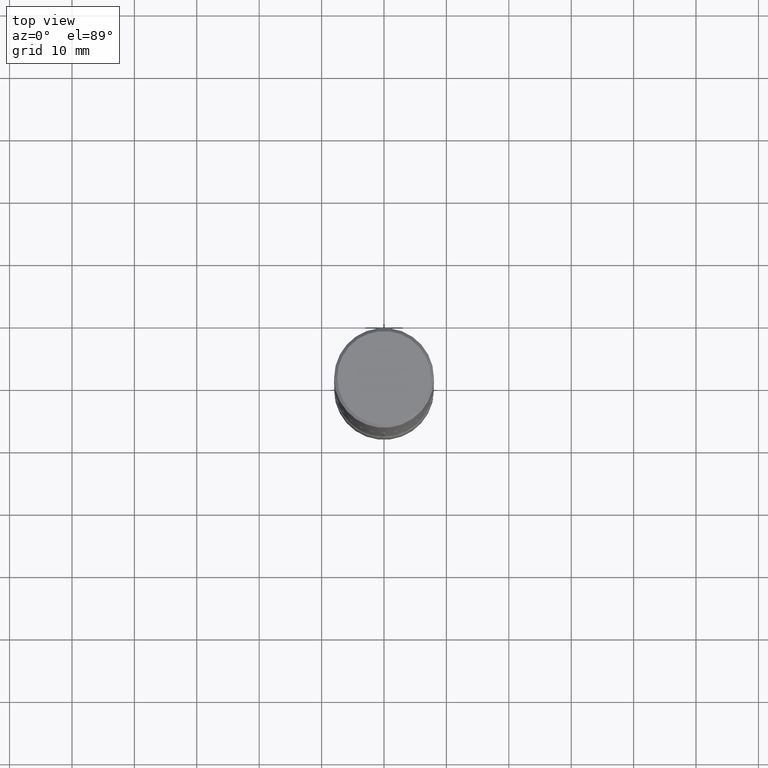
[diagram: clean part render]
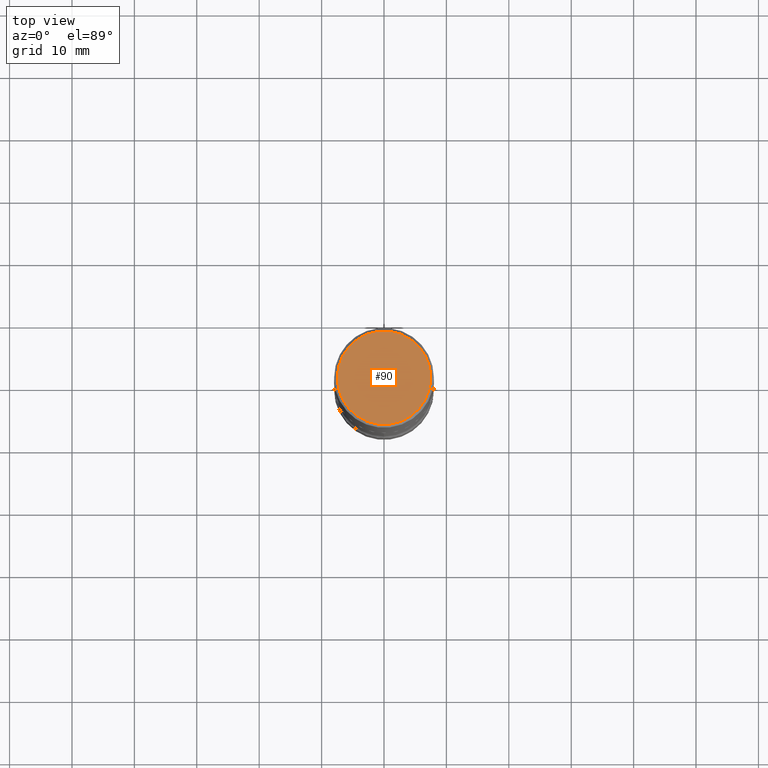
[diagram: same view with one face highlighted and labeled with its STEP entity id]
A machine part, top view. The second image highlights one B-rep face of the part: STEP entity #90.
In plain terms, the highlighted planar face has unit normal (0, -0, -1).
Its self-contained STEP definition (entity closure, byte-faithful):
#2 = AXIS2_PLACEMENT_3D ( 'NONE', #122, #382, #514 ) ;
#9 = DIRECTION ( 'NONE',  ( 1.000000000000000000, -6.982962677686267499E-15, 4.876053491004736589E-29 ) ) ;
#80 = EDGE_CURVE ( 'NONE', #396, #530, #296, .T. ) ;
#90 = ADVANCED_FACE ( 'NONE', ( #247 ), #474, .F. ) ;
#122 = CARTESIAN_POINT ( 'NONE',  ( -3.131554243005663153E-46, 4.471029511141347348E-32, 1.280553747030124924E-17 ) ) ;
#136 = CARTESIAN_POINT ( 'NONE',  ( -0.2949499999999998789, 2.094539655171994924E-15, 1.280553747028672311E-17 ) ) ;
#146 = CARTESIAN_POINT ( 'NONE',  ( 0.2949499999999998789, -2.127023677808859286E-15, 1.280553747031588939E-17 ) ) ;
#179 = ORIENTED_EDGE ( 'NONE', *, *, #362, .T. ) ;
#223 = CIRCLE ( 'NONE', #306, 0.2949499999999998789 ) ;
#247 = FACE_OUTER_BOUND ( 'NONE', #533, .T. ) ;
#268 = ORIENTED_EDGE ( 'NONE', *, *, #80, .T. ) ;
#293 = CARTESIAN_POINT ( 'NONE',  ( 2.059624841783563274E-15, 0.2949499999999998789, -1.023409652156634744E-15 ) ) ;
#296 = CIRCLE ( 'NONE', #2, 0.2949499999999998789 ) ;
#297 = DIRECTION ( 'NONE',  ( -2.445468806185136597E-29, 3.491481338843145583E-15, 1.000000000000000000 ) ) ;
#306 = AXIS2_PLACEMENT_3D ( 'NONE', #529, #297, #9 ) ;
#362 = EDGE_CURVE ( 'NONE', #530, #396, #223, .T. ) ;
#382 = DIRECTION ( 'NONE',  ( -2.445468806185136597E-29, 3.491481338843145583E-15, 1.000000000000000000 ) ) ;
#396 = VERTEX_POINT ( 'NONE', #136 ) ;
#474 = PLANE ( 'NONE',  #545 ) ;
#510 = DIRECTION ( 'NONE',  ( -1.000000000000000000, 6.982962677686265922E-15, -4.876176775795935793E-29 ) ) ;
#514 = DIRECTION ( 'NONE',  ( 1.000000000000000000, -6.982962677686267499E-15, 4.876053491004736589E-29 ) ) ;
#529 = CARTESIAN_POINT ( 'NONE',  ( -3.131554243005663153E-46, 4.471029511141347348E-32, 1.280553747030124924E-17 ) ) ;
#530 = VERTEX_POINT ( 'NONE', #146 ) ;
#533 = EDGE_LOOP ( 'NONE', ( #268, #179 ) ) ;
#545 = AXIS2_PLACEMENT_3D ( 'NONE', #293, #558, #510 ) ;
#558 = DIRECTION ( 'NONE',  ( 2.438088387897960049E-29, -3.491481338843145188E-15, -1.000000000000000000 ) ) ;